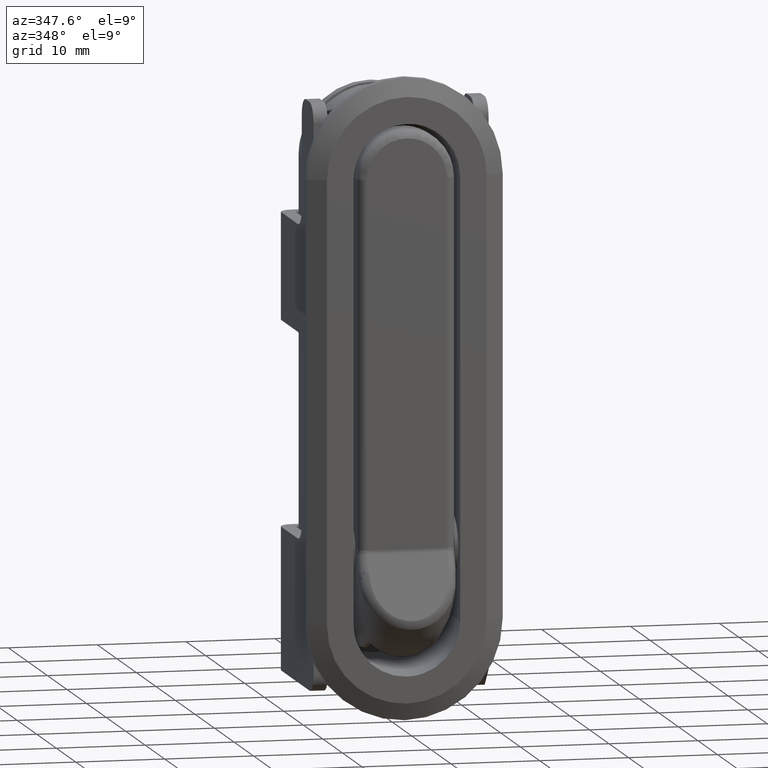
[diagram: clean part render]
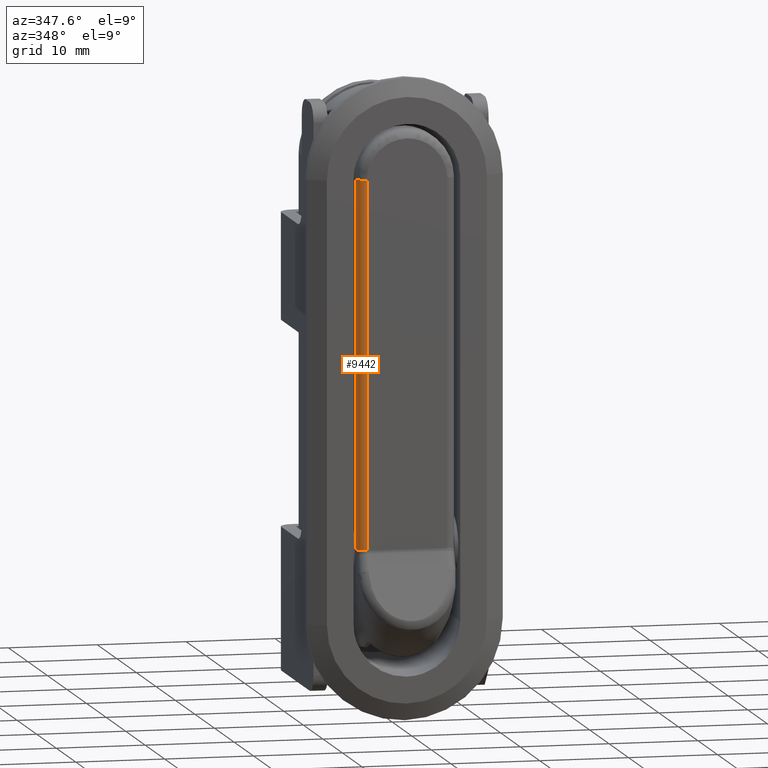
[diagram: same view with one face highlighted and labeled with its STEP entity id]
A machine part, auxiliary view. The second image highlights one B-rep face of the part: STEP entity #9442.
In plain terms, the highlighted face is a freeform B-spline surface patch.
Its self-contained STEP definition (entity closure, byte-faithful):
#8296=CARTESIAN_POINT('',(-4.499999999994146,-7.500000000031610,41.382734984768497));
#8297=VERTEX_POINT('',#8296);
#8312=CARTESIAN_POINT('',(-4.500000000001581,-7.500000000031610,0.191579619482273));
#8313=VERTEX_POINT('',#8312);
#8314=CARTESIAN_POINT('',(-4.499999999994146,-7.500000000031610,41.382734984768497));
#8315=CARTESIAN_POINT('',(-4.500000000001581,-7.500000000031610,0.191579619482273));
#8316=QUASI_UNIFORM_CURVE('',1,(#8314,#8315),.UNSPECIFIED.,.F.,.U.);
#8317=EDGE_CURVE('',#8297,#8313,#8316,.T.);
#9321=CARTESIAN_POINT('',(-5.500000000001580,-6.500000000031590,0.191579619482454));
#9322=VERTEX_POINT('',#9321);
#9323=CARTESIAN_POINT('',(-4.500000000001581,-7.500000000031610,0.191579619482273));
#9324=CARTESIAN_POINT('',(-4.614546732494991,-7.500079218146203,0.191579619482294));
#9325=CARTESIAN_POINT('',(-4.802654274636705,-7.467297652725423,0.191579619482328));
#9326=CARTESIAN_POINT('',(-5.076374888656506,-7.333736901312944,0.191579619482377));
#9327=CARTESIAN_POINT('',(-5.310213604014712,-7.121931216183838,0.191579619482420));
#9328=CARTESIAN_POINT('',(-5.467271553250911,-6.819071919325561,0.191579619482446));
#9329=CARTESIAN_POINT('',(-5.500024171133736,-6.598173455902958,0.191579619482455));
#9330=CARTESIAN_POINT('',(-5.500000000001580,-6.500000000031590,0.191579619482454));
#9331=B_SPLINE_CURVE_WITH_KNOTS('',3,(#9323,#9324,#9325,#9326,#9327,#9328,#9329,#9330),.UNSPECIFIED.,.F.,.U.,(4,1,1,1,1,4),(0.000000190626383,0.343617971341376,0.564522260792254,0.908118807690163,1.276307493042431,1.570835744371975),.UNSPECIFIED.);
#9332=EDGE_CURVE('',#8313,#9322,#9331,.T.);
#9367=CARTESIAN_POINT('',(-5.499999999993920,-6.500000000031590,41.382734984766550));
#9368=VERTEX_POINT('',#9367);
#9369=CARTESIAN_POINT('',(-5.499999999993920,-6.500000000031590,41.382734984766550));
#9370=CARTESIAN_POINT('',(-5.500242558418113,-6.647313789027243,41.382734984766927));
#9371=CARTESIAN_POINT('',(-5.450281616093313,-6.867998617548261,41.382734984767161));
#9372=CARTESIAN_POINT('',(-5.299087119348562,-7.113247766221950,41.382734984767950));
#9373=CARTESIAN_POINT('',(-5.140381595015425,-7.279958579319267,41.382734984768113));
#9374=CARTESIAN_POINT('',(-4.884358702003881,-7.446620634109011,41.382734984768447));
#9375=CARTESIAN_POINT('',(-4.647302353506175,-7.500208935520266,41.382734984768632));
#9376=CARTESIAN_POINT('',(-4.499999999994146,-7.500000000031610,41.382734984768497));
#9377=B_SPLINE_CURVE_WITH_KNOTS('',3,(#9369,#9370,#9371,#9372,#9373,#9374,#9375,#9376),.UNSPECIFIED.,.F.,.U.,(4,1,1,1,1,4),(0.000000190627407,0.441800186784951,0.662717127308858,0.859050042477227,1.129035748214285,1.570835744371731),.UNSPECIFIED.);
#9378=EDGE_CURVE('',#9368,#8297,#9377,.T.);
#9418=CARTESIAN_POINT('',(-4.473823051693888,-7.499657325007147,-0.838199264649888));
#9419=CARTESIAN_POINT('',(-4.473823051686078,-7.499657325007147,42.438258341003937));
#9420=CARTESIAN_POINT('',(-5.574984800556480,-7.528492260197850,-0.838199264649693));
#9421=CARTESIAN_POINT('',(-5.574984800548668,-7.528492260197850,42.438258341004143));
#9422=CARTESIAN_POINT('',(-5.497524479382570,-6.429679924405607,-0.838199264649706));
#9423=CARTESIAN_POINT('',(-5.497524479374759,-6.429679924405607,42.438258341004129));
#9431=(BOUNDED_SURFACE()B_SPLINE_SURFACE(1,2,((#9418,#9420,#9422),(#9419,#9421,#9423)),.UNSPECIFIED.,.F.,.F.,.U.)B_SPLINE_SURFACE_WITH_KNOTS((2,2),(3,3),(0.0,43.276457605653832),(0.0,0.994518632334191),.UNSPECIFIED.)GEOMETRIC_REPRESENTATION_ITEM()RATIONAL_B_SPLINE_SURFACE(((1.0,0.670944223154768,0.996392648609106),(1.0,0.670944223154768,0.996392648609106)))REPRESENTATION_ITEM('')SURFACE());
#9432=ORIENTED_EDGE('',*,*,#9332,.F.);
#9433=ORIENTED_EDGE('',*,*,#8317,.F.);
#9434=ORIENTED_EDGE('',*,*,#9378,.F.);
#9435=CARTESIAN_POINT('',(-5.500000000001580,-6.500000000031590,0.191579619482454));
#9436=CARTESIAN_POINT('',(-5.499999999993920,-6.500000000031590,41.382734984766550));
#9437=QUASI_UNIFORM_CURVE('',1,(#9435,#9436),.UNSPECIFIED.,.F.,.U.);
#9438=EDGE_CURVE('',#9322,#9368,#9437,.T.);
#9439=ORIENTED_EDGE('',*,*,#9438,.F.);
#9440=EDGE_LOOP('',(#9432,#9433,#9434,#9439));
#9441=FACE_OUTER_BOUND('',#9440,.T.);
#9442=ADVANCED_FACE('',(#9441),#9431,.T.);